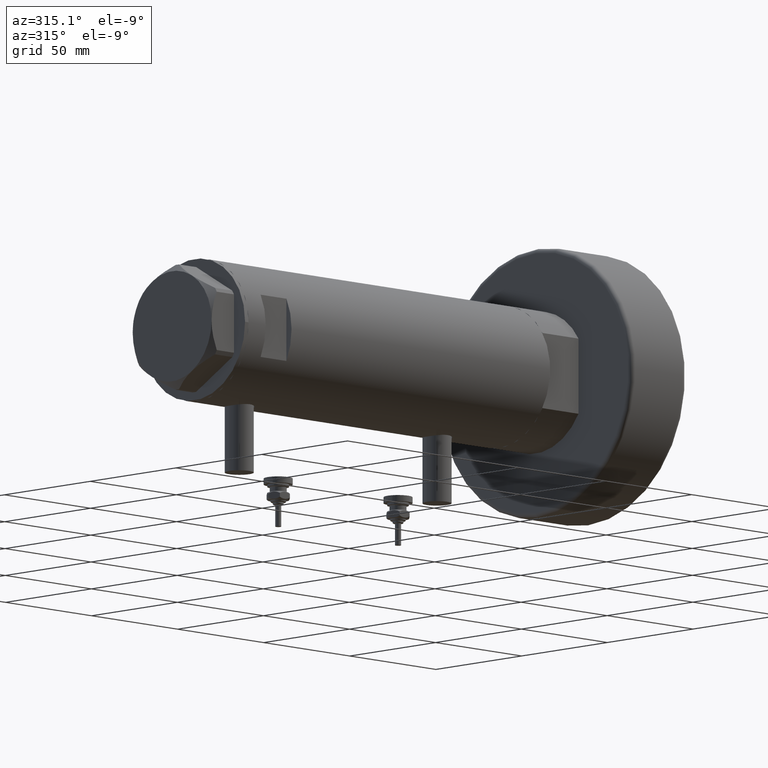
[diagram: clean part render]
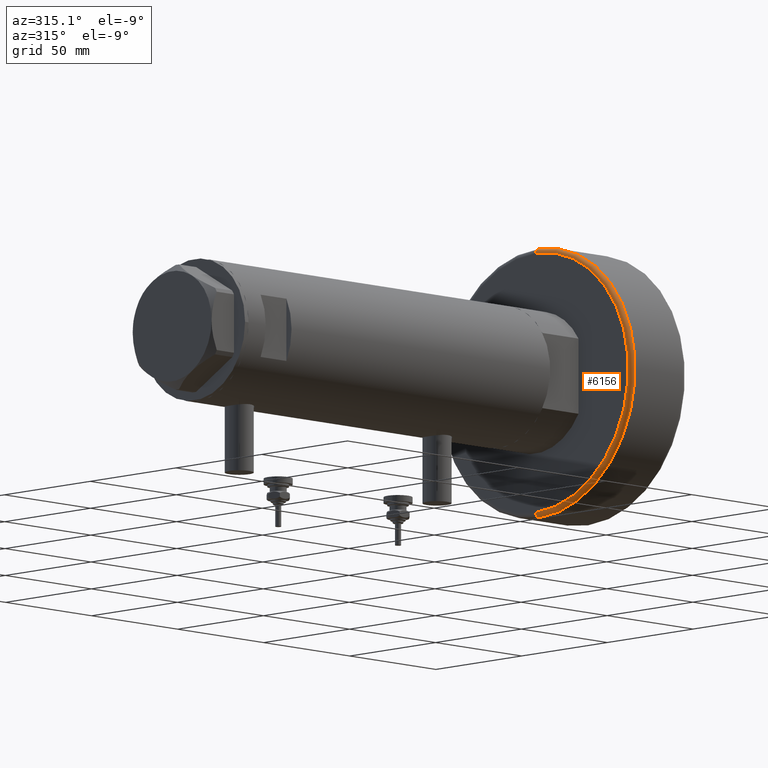
[diagram: same view with one face highlighted and labeled with its STEP entity id]
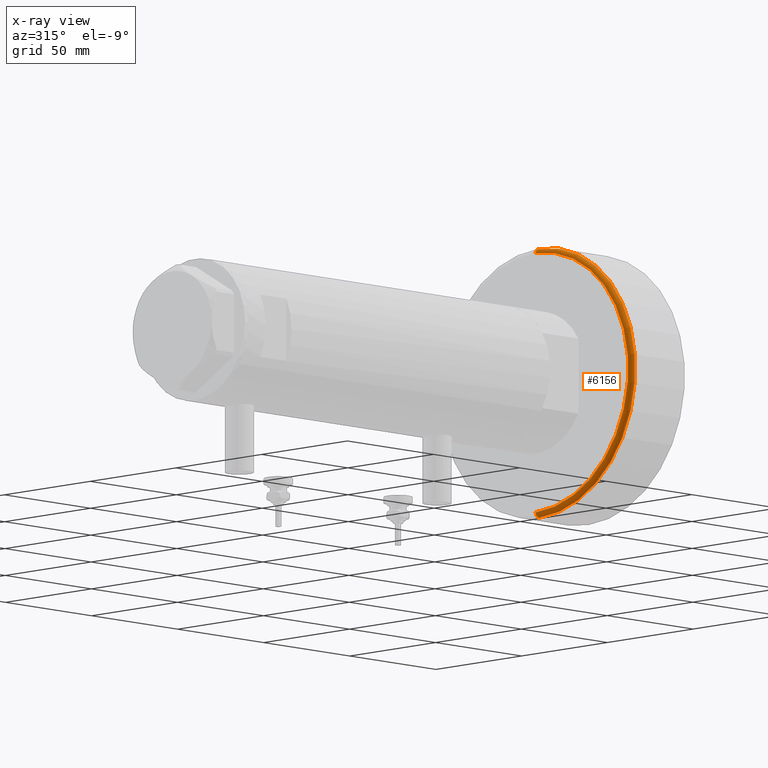
[diagram: x-ray of the same camera — body ghosted, the highlighted face saturated]
A machine part, auxiliary view. The second image highlights one B-rep face of the part: STEP entity #6156.
The next image is the same camera in x-ray: the body ghosted, the highlighted face saturated — about 0% of this face is hidden behind the body in this view.
In plain terms, the highlighted toroidal blend (fillet) surface has major radius 54 mm and minor (blend) radius 2 mm.
Its self-contained STEP definition (entity closure, byte-faithful):
#28 = AXIS2_PLACEMENT_3D ( 'NONE', #891, #4816, #421 ) ;
#421 = DIRECTION ( 'NONE',  ( 0.000000000000000000, 0.000000000000000000, -1.000000000000000000 ) ) ;
#429 = DIRECTION ( 'NONE',  ( 1.224646799147353207E-16, 1.000000000000000000, -0.000000000000000000 ) ) ;
#774 = CARTESIAN_POINT ( 'NONE',  ( 56.00000000000000000, 6.858022075225178552E-15, 2.000000000000001776 ) ) ;
#814 = CARTESIAN_POINT ( 'NONE',  ( 0.000000000000000000, 0.000000000000000000, 2.000000000000001776 ) ) ;
#868 = VERTEX_POINT ( 'NONE', #774 ) ;
#891 = CARTESIAN_POINT ( 'NONE',  ( 54.00000000000000000, 0.000000000000000000, 2.000000000000001776 ) ) ;
#1101 = EDGE_CURVE ( 'NONE', #4228, #4180, #2740, .T. ) ;
#1240 = DIRECTION ( 'NONE',  ( 1.000000000000000000, 0.000000000000000000, 0.000000000000000000 ) ) ;
#1358 = DIRECTION ( 'NONE',  ( -1.000000000000000000, 1.224646799147353454E-16, 0.000000000000000000 ) ) ;
#1367 = TOROIDAL_SURFACE ( 'NONE', #4452, 54.00000000000000000, 2.000000000000000000 ) ;
#1440 = CIRCLE ( 'NONE', #28, 2.000000000000000000 ) ;
#1625 = VERTEX_POINT ( 'NONE', #5139 ) ;
#1715 = ORIENTED_EDGE ( 'NONE', *, *, #4055, .F. ) ;
#2413 = CARTESIAN_POINT ( 'NONE',  ( -54.00000000000000000, 6.613092715395707467E-15, 2.000000000000001776 ) ) ;
#2457 = AXIS2_PLACEMENT_3D ( 'NONE', #4488, #4975, #5404 ) ;
#2595 = EDGE_CURVE ( 'NONE', #4228, #868, #1440, .T. ) ;
#2740 = CIRCLE ( 'NONE', #2457, 54.00000000000000000 ) ;
#2785 = ORIENTED_EDGE ( 'NONE', *, *, #2595, .T. ) ;
#2910 = DIRECTION ( 'NONE',  ( 0.000000000000000000, 0.000000000000000000, 1.000000000000000000 ) ) ;
#3263 = FACE_OUTER_BOUND ( 'NONE', #3528, .T. ) ;
#3528 = EDGE_LOOP ( 'NONE', ( #1715, #6060, #2785, #5401 ) ) ;
#3606 = AXIS2_PLACEMENT_3D ( 'NONE', #2413, #429, #1358 ) ;
#3729 = AXIS2_PLACEMENT_3D ( 'NONE', #5710, #2910, #6198 ) ;
#4055 = EDGE_CURVE ( 'NONE', #4180, #1625, #4731, .T. ) ;
#4149 = DIRECTION ( 'NONE',  ( 0.000000000000000000, 0.000000000000000000, 1.000000000000000000 ) ) ;
#4180 = VERTEX_POINT ( 'NONE', #5057 ) ;
#4228 = VERTEX_POINT ( 'NONE', #6127 ) ;
#4405 = EDGE_CURVE ( 'NONE', #1625, #868, #5026, .T. ) ;
#4452 = AXIS2_PLACEMENT_3D ( 'NONE', #814, #4149, #1240 ) ;
#4488 = CARTESIAN_POINT ( 'NONE',  ( 0.000000000000000000, 0.000000000000000000, 0.000000000000000000 ) ) ;
#4731 = CIRCLE ( 'NONE', #3606, 2.000000000000001776 ) ;
#4816 = DIRECTION ( 'NONE',  ( 0.000000000000000000, -1.000000000000000000, 0.000000000000000000 ) ) ;
#4975 = DIRECTION ( 'NONE',  ( -0.000000000000000000, -0.000000000000000000, -1.000000000000000000 ) ) ;
#5026 = CIRCLE ( 'NONE', #3729, 56.00000000000000000 ) ;
#5057 = CARTESIAN_POINT ( 'NONE',  ( -54.00000000000000000, 6.735557395310443404E-15, 0.000000000000000000 ) ) ;
#5139 = CARTESIAN_POINT ( 'NONE',  ( -56.00000000000000000, 0.000000000000000000, 2.000000000000001776 ) ) ;
#5401 = ORIENTED_EDGE ( 'NONE', *, *, #4405, .F. ) ;
#5404 = DIRECTION ( 'NONE',  ( 1.000000000000000000, 0.000000000000000000, 0.000000000000000000 ) ) ;
#5710 = CARTESIAN_POINT ( 'NONE',  ( 0.000000000000000000, 0.000000000000000000, 2.000000000000001776 ) ) ;
#6060 = ORIENTED_EDGE ( 'NONE', *, *, #1101, .F. ) ;
#6127 = CARTESIAN_POINT ( 'NONE',  ( 54.00000000000000000, 0.000000000000000000, 0.000000000000000000 ) ) ;
#6156 = ADVANCED_FACE ( 'NONE', ( #3263 ), #1367, .T. ) ;
#6198 = DIRECTION ( 'NONE',  ( 1.000000000000000000, 0.000000000000000000, 0.000000000000000000 ) ) ;